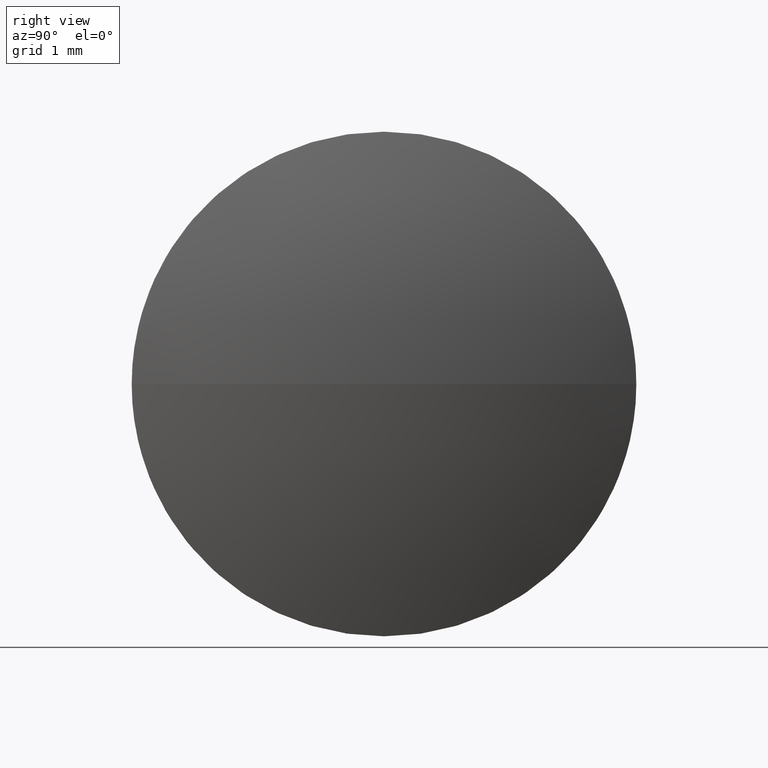
[diagram: clean part render]
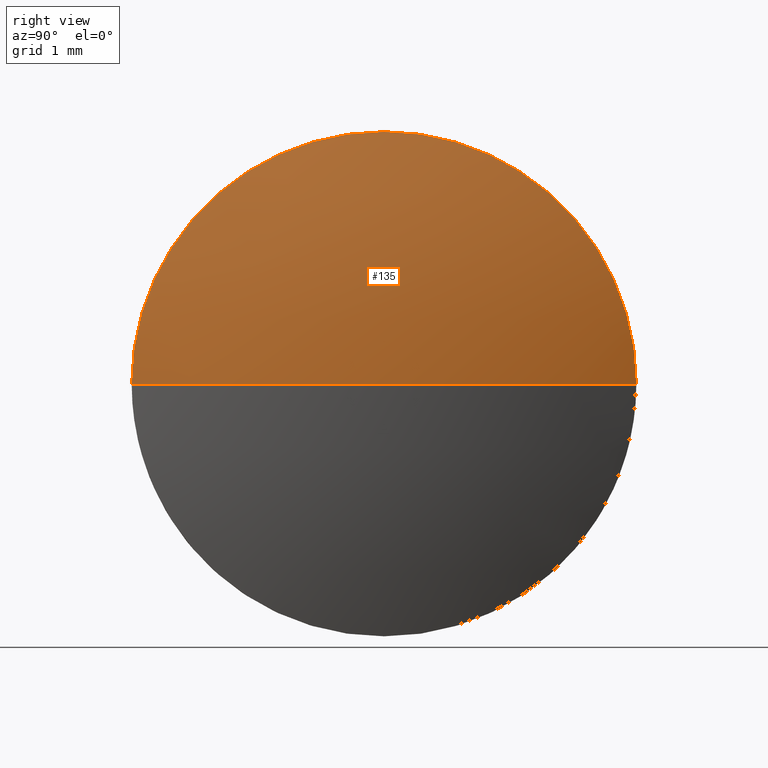
[diagram: same view with one face highlighted and labeled with its STEP entity id]
A machine part, right view. The second image highlights one B-rep face of the part: STEP entity #135.
In plain terms, the highlighted spherical surface has radius 10.37 mm.
Its self-contained STEP definition (entity closure, byte-faithful):
#2 = CARTESIAN_POINT ( 'NONE',  ( 608.5916480025523500, -14.05118396197294000, 3.857637417314037000E-016 ) ) ;
#5 = ORIENTED_EDGE ( 'NONE', *, *, #34, .T. ) ;
#6 = CARTESIAN_POINT ( 'NONE',  ( 598.7116480025524700, -17.20118396197283800, 0.0000000000000000000 ) ) ;
#11 = VERTEX_POINT ( 'NONE', #71 ) ;
#15 = DIRECTION ( 'NONE',  ( 0.0000000000000000000, -1.224646799147353200E-016, 1.000000000000000000 ) ) ;
#34 = EDGE_CURVE ( 'NONE', #11, #117, #95, .T. ) ;
#37 = SPHERICAL_SURFACE ( 'NONE', #123, 10.36999999999987000 ) ;
#38 = CARTESIAN_POINT ( 'NONE',  ( 598.7116480025524700, -17.20118396197283800, 0.0000000000000000000 ) ) ;
#48 = CARTESIAN_POINT ( 'NONE',  ( 608.5916480025523500, -17.20118396197295900, 0.0000000000000000000 ) ) ;
#54 = EDGE_CURVE ( 'NONE', #137, #153, #112, .T. ) ;
#57 = AXIS2_PLACEMENT_3D ( 'NONE', #48, #105, #72 ) ;
#58 = DIRECTION ( 'NONE',  ( -1.000000000000000000, -0.0000000000000000000, -0.0000000000000000000 ) ) ;
#59 = DIRECTION ( 'NONE',  ( 0.0000000000000000000, 0.0000000000000000000, -1.000000000000000000 ) ) ;
#70 = EDGE_CURVE ( 'NONE', #11, #137, #103, .T. ) ;
#71 = CARTESIAN_POINT ( 'NONE',  ( 609.0816480025523600, -17.20118396197283800, 0.0000000000000000000 ) ) ;
#72 = DIRECTION ( 'NONE',  ( 0.0000000000000000000, 0.0000000000000000000, 1.000000000000000000 ) ) ;
#73 = DIRECTION ( 'NONE',  ( -1.000000000000000000, 0.0000000000000000000, 0.0000000000000000000 ) ) ;
#77 = AXIS2_PLACEMENT_3D ( 'NONE', #38, #15, #157 ) ;
#95 = CIRCLE ( 'NONE', #77, 10.36999999999987000 ) ;
#101 = CIRCLE ( 'NONE', #57, 3.149999999999998100 ) ;
#103 = CIRCLE ( 'NONE', #139, 10.36999999999988000 ) ;
#104 = DIRECTION ( 'NONE',  ( 0.0000000000000000000, -1.000000000000000000, 0.0000000000000000000 ) ) ;
#105 = DIRECTION ( 'NONE',  ( -1.000000000000000000, -0.0000000000000000000, -0.0000000000000000000 ) ) ;
#112 = CIRCLE ( 'NONE', #122, 3.149999999999998100 ) ;
#117 = VERTEX_POINT ( 'NONE', #2 ) ;
#118 = CARTESIAN_POINT ( 'NONE',  ( 608.5916480025523500, -17.20118396197295900, 3.149999999999998100 ) ) ;
#121 = EDGE_LOOP ( 'NONE', ( #181, #5, #158, #124 ) ) ;
#122 = AXIS2_PLACEMENT_3D ( 'NONE', #177, #58, #126 ) ;
#123 = AXIS2_PLACEMENT_3D ( 'NONE', #6, #149, #104 ) ;
#124 = ORIENTED_EDGE ( 'NONE', *, *, #54, .F. ) ;
#126 = DIRECTION ( 'NONE',  ( 0.0000000000000000000, 0.0000000000000000000, 1.000000000000000000 ) ) ;
#134 = FACE_OUTER_BOUND ( 'NONE', #121, .T. ) ;
#135 = ADVANCED_FACE ( 'NONE', ( #134 ), #37, .T. ) ;
#137 = VERTEX_POINT ( 'NONE', #178 ) ;
#139 = AXIS2_PLACEMENT_3D ( 'NONE', #159, #59, #73 ) ;
#149 = DIRECTION ( 'NONE',  ( 0.0000000000000000000, 0.0000000000000000000, 1.000000000000000000 ) ) ;
#153 = VERTEX_POINT ( 'NONE', #118 ) ;
#157 = DIRECTION ( 'NONE',  ( 0.0000000000000000000, -1.000000000000000000, -1.224646799147353200E-016 ) ) ;
#158 = ORIENTED_EDGE ( 'NONE', *, *, #183, .F. ) ;
#159 = CARTESIAN_POINT ( 'NONE',  ( 598.7116480025524700, -17.20118396197283800, 0.0000000000000000000 ) ) ;
#177 = CARTESIAN_POINT ( 'NONE',  ( 608.5916480025523500, -17.20118396197295900, 0.0000000000000000000 ) ) ;
#178 = CARTESIAN_POINT ( 'NONE',  ( 608.5916480025523500, -20.35118396197285400, 0.0000000000000000000 ) ) ;
#181 = ORIENTED_EDGE ( 'NONE', *, *, #70, .F. ) ;
#183 = EDGE_CURVE ( 'NONE', #153, #117, #101, .T. ) ;